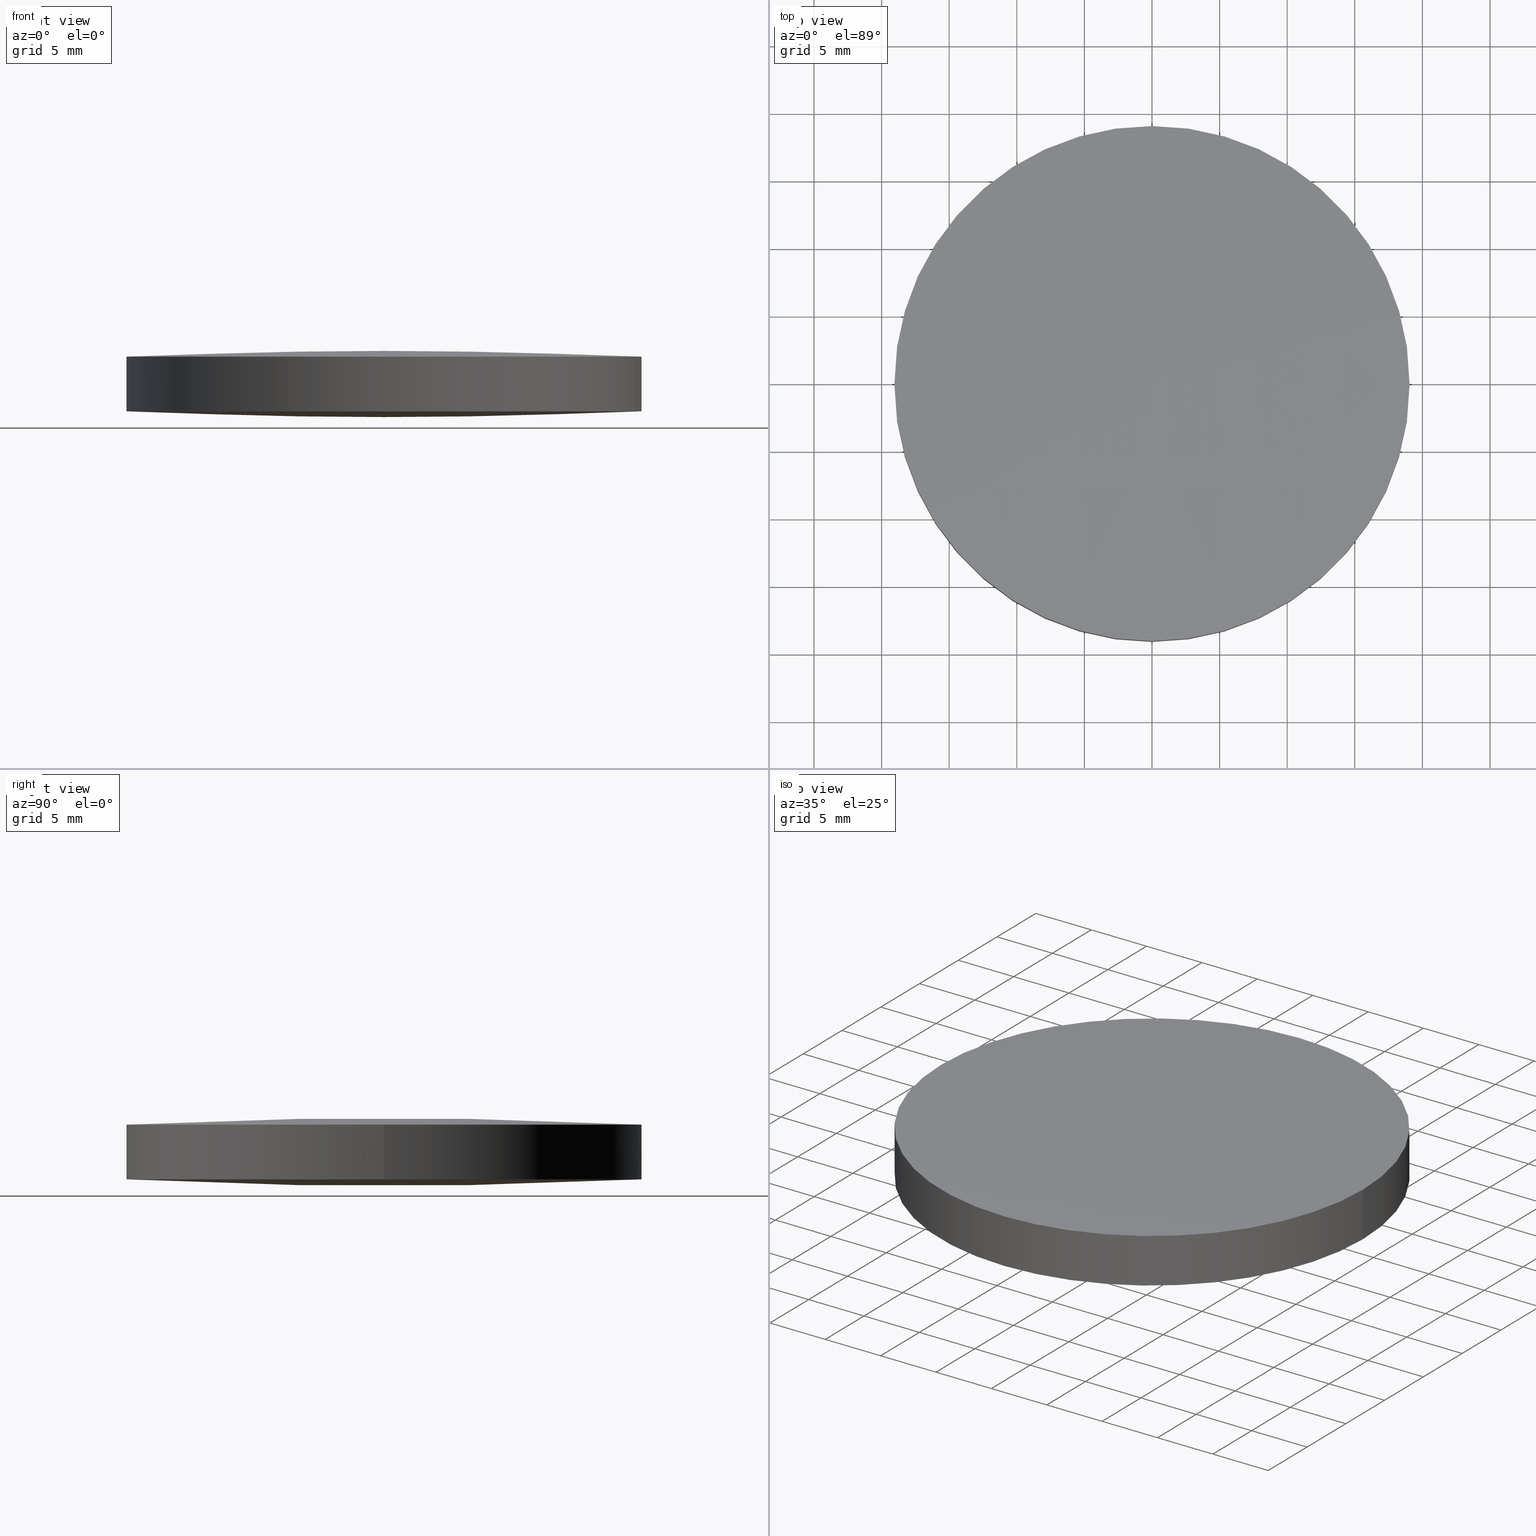
[diagram: canonical four-view strip — front | top / right | iso, engineering-drawing reading convention]
A machine part, canonical four-view strip (front | top / right | iso — engineering-drawing reading convention). The complete STEP part file that produces these views, byte-faithful:
ISO-10303-21;
HEADER;
FILE_DESCRIPTION (( 'STEP AP203' ),
    '1' );
FILE_NAME ('111-1430E UVFS bi-cx 38.1 F400.STEP',
    '2019-01-08T06:52:08',
    ( '' ),
    ( '' ),
    'SwSTEP 2.0',
    'SolidWorks 2017',
    '' );
FILE_SCHEMA (( 'CONFIG_CONTROL_DESIGN' ));
ENDSEC;

DATA;
#1 = DIRECTION ( 'NONE',  ( 0.0000000000000000000, 0.0000000000000000000, 1.000000000000000000 ) ) ;
#2 = CARTESIAN_POINT ( 'NONE',  ( -19.13952497321511400, 19.27840483950793200, 4.027732086510656700 ) ) ;
#3 = AXIS2_PLACEMENT_3D ( 'NONE', #208, #136, #138 ) ;
#4 = EDGE_LOOP ( 'NONE', ( #89, #43, #111, #147, #232, #107 ) ) ;
#5 = APPROVAL_ROLE ( '' ) ;
#6 = LINE ( 'NONE', #42, #237 ) ;
#7 = EDGE_CURVE ( 'NONE', #40, #194, #99, .T. ) ;
#8 = AXIS2_PLACEMENT_3D ( 'NONE', #82, #123, #282 ) ;
#9 = VERTEX_POINT ( 'NONE', #79 ) ;
#10 = COORDINATED_UNIVERSAL_TIME_OFFSET ( 2, 0, .AHEAD. ) ;
#11 = CARTESIAN_POINT ( 'NONE',  ( -12.78637059462209000, 6.431656436612464700, -0.001964688007500333300 ) ) ;
#12 = CARTESIAN_POINT ( 'NONE',  ( -6.383226228310434200, -19.27840483950791800, 0.4893372949265619700 ) ) ;
#13 = CARTESIAN_POINT ( 'NONE',  ( 12.76442145578985400, -19.27840483950794900, 4.349651678797221700 ) ) ;
#14 = CALENDAR_DATE ( 2019, 8, 1 ) ;
#15 = CARTESIAN_POINT ( 'NONE',  ( -6.394202543936491300, -6.431656436612434500, -0.1632525817768162600 ) ) ;
#16 = CARTESIAN_POINT ( 'NONE',  ( 6.394202543936498500, 6.431656436612435400, 5.163252581776818700 ) ) ;
#17 = DIRECTION ( 'NONE',  ( 1.000000000000000000, 8.881784197001252300E-016, 0.0000000000000000000 ) ) ;
#18 = ORIENTED_EDGE ( 'NONE', *, *, #195, .T. ) ;
#19 = APPROVAL_PERSON_ORGANIZATION ( #86, #262, #5 ) ;
#20 = CARTESIAN_POINT ( 'NONE',  ( 19.04999999999999700, -8.881784197001250400E-016, 0.4778036794158739800 ) ) ;
#21 = ADVANCED_FACE ( 'NONE', ( #281 ), #126, .T. ) ;
#22 = CARTESIAN_POINT ( 'NONE',  ( -19.13952497321512800, -19.27840483950794200, 4.027732086510656700 ) ) ;
#23 = CALENDAR_DATE ( 2019, 8, 1 ) ;
#24 = APPLICATION_PROTOCOL_DEFINITION ( 'international standard', 'config_control_design', 1994, #183 ) ;
#25 = CARTESIAN_POINT ( 'NONE',  ( 4.348604400664740100E-014, -6.431656436612463800, 5.163252581776822200 ) ) ;
#26 =( BOUNDED_SURFACE ( )  B_SPLINE_SURFACE ( 3, 3, ( 
 ( #103, #154, #217, #41 ),
 ( #83, #239, #266, #288 ),
 ( #153, #106, #201, #59 ),
 ( #218, #85, #240, #104 ) ),
 .UNSPECIFIED., .F., .F., .F. ) 
 B_SPLINE_SURFACE_WITH_KNOTS ( ( 4, 4 ),
 ( 4, 4 ),
 ( 0.0000000000000000000, 1.000000000000000000 ),
 ( 0.0000000000000000000, 1.000000000000000000 ),
 .UNSPECIFIED. ) 
 GEOMETRIC_REPRESENTATION_ITEM ( )  RATIONAL_B_SPLINE_SURFACE ( (
 ( 1.000000000000000000, 0.9997878814716106800, 0.9997878814716106800, 1.000000000000000000),
 ( 0.9991415135176726600, 0.9989295770901726000, 0.9989295770901726000, 0.9991415135176726600),
 ( 0.9991415135176726600, 0.9989295770901726000, 0.9989295770901726000, 0.9991415135176726600),
 ( 1.000000000000000000, 0.9997878814716106800, 0.9997878814716106800, 1.000000000000000000) ) ) 
 REPRESENTATION_ITEM ( '' )  SURFACE ( )  );
#27 = CARTESIAN_POINT ( 'NONE',  ( 5.132099445097372400E-014, 19.27840483950792500, 4.510662705073443100 ) ) ;
#28 = APPROVAL_DATE_TIME ( #165, #139 ) ;
#29 = CARTESIAN_POINT ( 'NONE',  ( -19.17243646021631800, 6.431656436612445100, 4.679491536920929600 ) ) ;
#30 = CIRCLE ( 'NONE', #54, 19.05000000000000100 ) ;
#31 = ADVANCED_FACE ( 'NONE', ( #118 ), #193, .T. ) ;
#32 = CC_DESIGN_PERSON_AND_ORGANIZATION_ASSIGNMENT ( #69, #256, ( #105 ) ) ;
#33 = ORIENTED_EDGE ( 'NONE', *, *, #200, .F. ) ;
#34 = PERSON_AND_ORGANIZATION ( #77, #144 ) ;
#35 = EDGE_CURVE ( 'NONE', #9, #209, #161, .T. ) ;
#36 = CARTESIAN_POINT ( 'NONE',  ( -6.383226228310448400, 19.27840483950794900, 0.4893372949265620800 ) ) ;
#37 = EDGE_CURVE ( 'NONE', #213, #40, #30, .T. ) ;
#38 = ORIENTED_EDGE ( 'NONE', *, *, #149, .F. ) ;
#39 = CARTESIAN_POINT ( 'NONE',  ( 1.353084311261909500E-013, -6.431656436612464700, 5.163252581776824000 ) ) ;
#40 = VERTEX_POINT ( 'NONE', #88 ) ;
#41 = CARTESIAN_POINT ( 'NONE',  ( 19.13952497321512800, -19.27840483950791000, 0.9722679134893471600 ) ) ;
#42 = CARTESIAN_POINT ( 'NONE',  ( -19.05000000000000400, 1.444773732675583000E-015, 0.4778036794158739800 ) ) ;
#43 = ORIENTED_EDGE ( 'NONE', *, *, #149, .T. ) ;
#44 = APPROVAL_DATE_TIME ( #228, #220 ) ;
#45 = MECHANICAL_CONTEXT ( 'NONE', #183, 'mechanical' ) ;
#46 = EDGE_CURVE ( 'NONE', #213, #211, #260, .T. ) ;
#47 = CARTESIAN_POINT ( 'NONE',  ( -12.76442145578966600, -19.27840483950794200, 4.349651678797236800 ) ) ;
#48 = CARTESIAN_POINT ( 'NONE',  ( -6.383226228310255700, -19.27840483950794200, 4.510662705073442200 ) ) ;
#49 = CARTESIAN_POINT ( 'NONE',  ( -6.383226228310244100, 19.27840483950792500, 4.510662705073442200 ) ) ;
#50 =( LENGTH_UNIT ( ) NAMED_UNIT ( * ) SI_UNIT ( .MILLI., .METRE. ) );
#51 = APPROVAL_STATUS ( 'not_yet_approved' ) ;
#52 = PERSON_AND_ORGANIZATION_ROLE ( 'design_supplier' ) ;
#53 = EDGE_LOOP ( 'NONE', ( #278, #166, #33 ) ) ;
#54 = AXIS2_PLACEMENT_3D ( 'NONE', #156, #130, #64 ) ;
#55 = CARTESIAN_POINT ( 'NONE',  ( 19.13952497321534100, 19.27840483950791800, 4.027732086510638100 ) ) ;
#56 = CARTESIAN_POINT ( 'NONE',  ( -19.17243646021652700, 6.431656436612463800, 0.3205084630790941400 ) ) ;
#57 = AXIS2_PLACEMENT_3D ( 'NONE', #202, #219, #62 ) ;
#58 = CARTESIAN_POINT ( 'NONE',  ( -1.283695372222837200E-013, -19.27840483950791800, 0.4893372949265601400 ) ) ;
#59 = CARTESIAN_POINT ( 'NONE',  ( 19.17243646021631800, 6.431656436612476200, 0.3205084630790748800 ) ) ;
#60 = FACE_OUTER_BOUND ( 'NONE', #234, .T. ) ;
#61 = LOCAL_TIME ( 8, 52, 8.000000000000000000, #10 ) ;
#62 = DIRECTION ( 'NONE',  ( 1.000000000000000000, 0.0000000000000000000, 0.0000000000000000000 ) ) ;
#63 = EDGE_CURVE ( 'NONE', #152, #194, #93, .T. ) ;
#64 = DIRECTION ( 'NONE',  ( 1.000000000000000000, 0.0000000000000000000, 0.0000000000000000000 ) ) ;
#65 = CIRCLE ( 'NONE', #57, 19.05000000000000100 ) ;
#66 = CARTESIAN_POINT ( 'NONE',  ( -19.05000000000000400, 1.444773732675583000E-015, 0.4778036794158739800 ) ) ;
#67 = AXIS2_PLACEMENT_3D ( 'NONE', #271, #292, #203 ) ;
#68 = VERTEX_POINT ( 'NONE', #243 ) ;
#69 = PERSON_AND_ORGANIZATION ( #77, #144 ) ;
#70 = APPLICATION_PROTOCOL_DEFINITION ( 'international standard', 'config_control_design', 1994, #140 ) ;
#71 = CC_DESIGN_APPROVAL ( #139, ( #277 ) ) ;
#72 = CIRCLE ( 'NONE', #98, 19.05000000000000100 ) ;
#73 = PERSON_AND_ORGANIZATION ( #77, #144 ) ;
#74 = EDGE_CURVE ( 'NONE', #9, #68, #97, .T. ) ;
#75 = EDGE_LOOP ( 'NONE', ( #38, #270, #143, #224, #286, #128 ) ) ;
#76 = APPROVAL_DATE_TIME ( #137, #262 ) ;
#77 = PERSON ( 'UNSPECIFIED', 'UNSPECIFIED', 'UNSPECIFIED', ('UNSPECIFIED'), ('UNSPECIFIED'), ('UNSPECIFIED') ) ;
#78 = CIRCLE ( 'NONE', #145, 19.05000000000000100 ) ;
#79 = CARTESIAN_POINT ( 'NONE',  ( 3.959762838265699500E-014, -19.04999999999978000, 4.522196320584167300 ) ) ;
#80 = CC_DESIGN_DATE_AND_TIME_ASSIGNMENT ( #291, #226, ( #105 ) ) ;
#81 = ADVANCED_FACE ( 'NONE', ( #254 ), #192, .T. ) ;
#82 = CARTESIAN_POINT ( 'NONE',  ( -2.842170943040400100E-014, 2.842170943040400100E-014, 380.0000000000000000 ) ) ;
#83 = CARTESIAN_POINT ( 'NONE',  ( -4.348604400664740800E-014, -6.431656436612431800, -0.1632525817768165100 ) ) ;
#84 = ORIENTED_EDGE ( 'NONE', *, *, #7, .T. ) ;
#85 = CARTESIAN_POINT ( 'NONE',  ( 6.383226228310244100, 19.27840483950795700, 0.4893372949265615300 ) ) ;
#86 = PERSON_AND_ORGANIZATION ( #77, #144 ) ;
#87 = AXIS2_PLACEMENT_3D ( 'NONE', #109, #131, #293 ) ;
#88 = CARTESIAN_POINT ( 'NONE',  ( -3.959762838265698800E-014, -19.04999999999978000, 0.4778036794158371200 ) ) ;
#89 = ORIENTED_EDGE ( 'NONE', *, *, #63, .F. ) ;
#90 = DATE_AND_TIME ( #95, #157 ) ;
#91 = CARTESIAN_POINT ( 'NONE',  ( -5.125164675251374400E-014, 19.04999999999980500, 0.4778036794158371200 ) ) ;
#92 = CARTESIAN_POINT ( 'NONE',  ( -4.662936703425659800E-015, -8.881784197001250400E-016, 4.522196320584130000 ) ) ;
#93 = CIRCLE ( 'NONE', #210, 19.05000000000000100 ) ;
#94 = CC_DESIGN_APPROVAL ( #262, ( #105 ) ) ;
#95 = CALENDAR_DATE ( 2019, 8, 1 ) ;
#96 = SECURITY_CLASSIFICATION_LEVEL ( 'unclassified' ) ;
#97 = CIRCLE ( 'NONE', #87, 19.05000000000000100 ) ;
#98 = AXIS2_PLACEMENT_3D ( 'NONE', #134, #112, #246 ) ;
#99 = CIRCLE ( 'NONE', #8, 380.0000000000000000 ) ;
#100 = CALENDAR_DATE ( 2019, 8, 1 ) ;
#101 = CARTESIAN_POINT ( 'NONE',  ( 1.283695372222837200E-013, -19.27840483950794900, 4.510662705073443100 ) ) ;
#102 = ORIENTED_EDGE ( 'NONE', *, *, #294, .F. ) ;
#103 = CARTESIAN_POINT ( 'NONE',  ( -3.952724725196252700E-014, -19.27840483950791800, 0.4893372949265617500 ) ) ;
#104 = CARTESIAN_POINT ( 'NONE',  ( 19.13952497321511400, 19.27840483950796400, 0.9722679134893471600 ) ) ;
#105 = PRODUCT_DEFINITION ( 'UNKNOWN', '', #115, #176 ) ;
#106 = CARTESIAN_POINT ( 'NONE',  ( 6.394202543936295900, 6.431656436612470900, -0.1632525817768162300 ) ) ;
#107 = ORIENTED_EDGE ( 'NONE', *, *, #195, .F. ) ;
#108 = DIRECTION ( 'NONE',  ( 0.0000000000000000000, 0.0000000000000000000, 1.000000000000000000 ) ) ;
#109 = CARTESIAN_POINT ( 'NONE',  ( -4.662936703425659800E-015, -8.881784197001250400E-016, 4.522196320584130000 ) ) ;
#110 = ADVANCED_FACE ( 'NONE', ( #60 ), #26, .T. ) ;
#111 = ORIENTED_EDGE ( 'NONE', *, *, #200, .T. ) ;
#112 = DIRECTION ( 'NONE',  ( -0.0000000000000000000, -0.0000000000000000000, -1.000000000000000000 ) ) ;
#113 = CARTESIAN_POINT ( 'NONE',  ( 4.742067089698283200E-014, 6.431656436612438900, 5.163252581776819600 ) ) ;
#114 = AXIS2_PLACEMENT_3D ( 'NONE', #158, #268, #175 ) ;
#115 = PRODUCT_DEFINITION_FORMATION_WITH_SPECIFIED_SOURCE ( 'ANY', '', #284, .NOT_KNOWN. ) ;
#116 = PERSON_AND_ORGANIZATION_ROLE ( 'design_owner' ) ;
#117 = AXIS2_PLACEMENT_3D ( 'NONE', #225, #295, #159 ) ;
#118 = FACE_OUTER_BOUND ( 'NONE', #169, .T. ) ;
#119 = CC_DESIGN_APPROVAL ( #220, ( #115 ) ) ;
#120 = PERSON_AND_ORGANIZATION ( #77, #144 ) ;
#121 = CARTESIAN_POINT ( 'NONE',  ( -12.76442145578985400, -19.27840483950791800, 0.6503483212027836300 ) ) ;
#122 = EDGE_CURVE ( 'NONE', #40, #152, #65, .T. ) ;
#123 = DIRECTION ( 'NONE',  ( 1.000000000000000000, 3.058797472403380000E-016, -4.480087937417740100E-017 ) ) ;
#124 = CIRCLE ( 'NONE', #269, 19.05000000000000100 ) ;
#125 = CARTESIAN_POINT ( 'NONE',  ( -1.422473250300981800E-013, 6.431656436612469100, -0.1632525817768177000 ) ) ;
#126 =( BOUNDED_SURFACE ( )  B_SPLINE_SURFACE ( 3, 3, ( 
 ( #261, #121, #12, #58 ),
 ( #146, #150, #15, #238 ),
 ( #56, #11, #173, #125 ),
 ( #215, #212, #36, #263 ) ),
 .UNSPECIFIED., .F., .F., .F. ) 
 B_SPLINE_SURFACE_WITH_KNOTS ( ( 4, 4 ),
 ( 4, 4 ),
 ( 0.0000000000000000000, 1.000000000000000000 ),
 ( 0.0000000000000000000, 1.000000000000000000 ),
 .UNSPECIFIED. ) 
 GEOMETRIC_REPRESENTATION_ITEM ( )  RATIONAL_B_SPLINE_SURFACE ( (
 ( 1.000000000000000000, 0.9997878814716106800, 0.9997878814716106800, 1.000000000000000000),
 ( 0.9991415135176726600, 0.9989295770901726000, 0.9989295770901726000, 0.9991415135176726600),
 ( 0.9991415135176726600, 0.9989295770901726000, 0.9989295770901726000, 0.9991415135176726600),
 ( 1.000000000000000000, 0.9997878814716106800, 0.9997878814716106800, 1.000000000000000000) ) ) 
 REPRESENTATION_ITEM ( '' )  SURFACE ( )  );
#127 = DIRECTION ( 'NONE',  ( -0.0000000000000000000, -0.0000000000000000000, -1.000000000000000000 ) ) ;
#128 = ORIENTED_EDGE ( 'NONE', *, *, #74, .T. ) ;
#129 = LOCAL_TIME ( 8, 52, 8.000000000000000000, #148 ) ;
#130 = DIRECTION ( 'NONE',  ( -0.0000000000000000000, -0.0000000000000000000, -1.000000000000000000 ) ) ;
#131 = DIRECTION ( 'NONE',  ( -0.0000000000000000000, -0.0000000000000000000, -1.000000000000000000 ) ) ;
#132 = LOCAL_TIME ( 8, 52, 8.000000000000000000, #142 ) ;
#133 = DIRECTION ( 'NONE',  ( -0.0000000000000000000, -0.0000000000000000000, -1.000000000000000000 ) ) ;
#134 = CARTESIAN_POINT ( 'NONE',  ( -4.662936703425659800E-015, -8.881784197001250400E-016, 0.4778036794158739800 ) ) ;
#135 = CARTESIAN_POINT ( 'NONE',  ( -6.394202543936295900, 6.431656436612439800, 5.163252581776818700 ) ) ;
#136 = DIRECTION ( 'NONE',  ( 0.0000000000000000000, 0.0000000000000000000, 1.000000000000000000 ) ) ;
#137 = DATE_AND_TIME ( #23, #129 ) ;
#138 = DIRECTION ( 'NONE',  ( 1.000000000000000000, 0.0000000000000000000, 0.0000000000000000000 ) ) ;
#139 = APPROVAL ( #51, 'UNSPECIFIED' ) ;
#140 = APPLICATION_CONTEXT ( 'configuration controlled 3d designs of mechanical parts and assemblies' ) ;
#141 = FACE_OUTER_BOUND ( 'NONE', #53, .T. ) ;
#142 = COORDINATED_UNIVERSAL_TIME_OFFSET ( 2, 0, .AHEAD. ) ;
#143 = ORIENTED_EDGE ( 'NONE', *, *, #37, .F. ) ;
#144 = ORGANIZATION ( 'UNSPECIFIED', 'UNSPECIFIED', '' ) ;
#145 = AXIS2_PLACEMENT_3D ( 'NONE', #273, #133, #205 ) ;
#146 = CARTESIAN_POINT ( 'NONE',  ( -19.17243646021652000, -6.431656436612438900, 0.3205084630790935900 ) ) ;
#147 = ORIENTED_EDGE ( 'NONE', *, *, #294, .T. ) ;
#148 = COORDINATED_UNIVERSAL_TIME_OFFSET ( 2, 0, .AHEAD. ) ;
#149 = EDGE_CURVE ( 'NONE', #152, #68, #6, .T. ) ;
#150 = CARTESIAN_POINT ( 'NONE',  ( -12.78637059462208300, -6.431656436612436200, -0.001964688007500820300 ) ) ;
#151 = CARTESIAN_POINT ( 'NONE',  ( 12.78637059462209000, 6.431656436612433600, 5.001964688007503500 ) ) ;
#152 = VERTEX_POINT ( 'NONE', #66 ) ;
#153 = CARTESIAN_POINT ( 'NONE',  ( -4.742067089698283200E-014, 6.431656436612470000, -0.1632525817768159500 ) ) ;
#154 = CARTESIAN_POINT ( 'NONE',  ( 6.383226228310255700, -19.27840483950791000, 0.4893372949265615300 ) ) ;
#155 = CC_DESIGN_PERSON_AND_ORGANIZATION_ASSIGNMENT ( #248, #255, ( #115 ) ) ;
#156 = CARTESIAN_POINT ( 'NONE',  ( -4.662936703425659800E-015, -8.881784197001250400E-016, 0.4778036794158739800 ) ) ;
#157 = LOCAL_TIME ( 8, 52, 8.000000000000000000, #171 ) ;
#158 = CARTESIAN_POINT ( 'NONE',  ( -4.662936703425659800E-015, -8.881784197001250400E-016, 0.4778036794158739800 ) ) ;
#159 = DIRECTION ( 'NONE',  ( 1.000000000000000000, 0.0000000000000000000, 0.0000000000000000000 ) ) ;
#160 = CARTESIAN_POINT ( 'NONE',  ( -19.17243646021632100, -6.431656436612457600, 4.679491536920932200 ) ) ;
#161 = CIRCLE ( 'NONE', #67, 380.0000000000000000 ) ;
#162 = CC_DESIGN_PERSON_AND_ORGANIZATION_ASSIGNMENT ( #242, #116, ( #284 ) ) ;
#163 =( NAMED_UNIT ( * ) PLANE_ANGLE_UNIT ( ) SI_UNIT ( $, .RADIAN. ) );
#164 = AXIS2_PLACEMENT_3D ( 'NONE', #186, #1, #222 ) ;
#165 = DATE_AND_TIME ( #14, #132 ) ;
#166 = ORIENTED_EDGE ( 'NONE', *, *, #35, .T. ) ;
#167 = COORDINATED_UNIVERSAL_TIME_OFFSET ( 2, 0, .AHEAD. ) ;
#168 = APPROVAL_STATUS ( 'not_yet_approved' ) ;
#169 = EDGE_LOOP ( 'NONE', ( #170, #283, #102 ) ) ;
#170 = ORIENTED_EDGE ( 'NONE', *, *, #35, .F. ) ;
#171 = COORDINATED_UNIVERSAL_TIME_OFFSET ( 2, 0, .AHEAD. ) ;
#172 = CARTESIAN_POINT ( 'NONE',  ( 12.78637059462208300, -6.431656436612468200, 5.001964688007505300 ) ) ;
#173 = CARTESIAN_POINT ( 'NONE',  ( -6.394202543936498500, 6.431656436612467300, -0.1632525817768158100 ) ) ;
#174 = CLOSED_SHELL ( 'NONE', ( #110, #244, #81, #21, #181, #31 ) ) ;
#175 = DIRECTION ( 'NONE',  ( 1.000000000000000000, 0.0000000000000000000, 0.0000000000000000000 ) ) ;
#176 = DESIGN_CONTEXT ( 'detailed design', #140, 'design' ) ;
#177 = CC_DESIGN_PERSON_AND_ORGANIZATION_ASSIGNMENT ( #279, #231, ( #277 ) ) ;
#178 = DIRECTION ( 'NONE',  ( 0.0000000000000000000, 0.0000000000000000000, 1.000000000000000000 ) ) ;
#179 =( GEOMETRIC_REPRESENTATION_CONTEXT ( 3 ) GLOBAL_UNCERTAINTY_ASSIGNED_CONTEXT ( ( #259 ) ) GLOBAL_UNIT_ASSIGNED_CONTEXT ( ( #50, #163, #250 ) ) REPRESENTATION_CONTEXT ( 'NONE', 'WORKASPACE' ) );
#180 = EDGE_LOOP ( 'NONE', ( #264, #290, #267 ) ) ;
#181 = ADVANCED_FACE ( 'NONE', ( #199 ), #247, .T. ) ;
#182 = CARTESIAN_POINT ( 'NONE',  ( 6.383226228310448400, 19.27840483950791800, 4.510662705073441400 ) ) ;
#183 = APPLICATION_CONTEXT ( 'configuration controlled 3d designs of mechanical parts and assemblies' ) ;
#184 = CARTESIAN_POINT ( 'NONE',  ( 3.952724725196252000E-014, -19.27840483950794900, 4.510662705073443100 ) ) ;
#185 = MANIFOLD_SOLID_BREP ( 'Imported1', #174 ) ;
#186 = CARTESIAN_POINT ( 'NONE',  ( -4.662936703425659800E-015, -8.881784197001250400E-016, 0.4778036794158739800 ) ) ;
#187 = VECTOR ( 'NONE', #178, 1000.000000000000000 ) ;
#188 = LOCAL_TIME ( 8, 52, 8.000000000000000000, #167 ) ;
#189 = PRODUCT_RELATED_PRODUCT_CATEGORY ( 'detail', '', ( #284 ) ) ;
#190 = DATE_TIME_ROLE ( 'classification_date' ) ;
#191 = APPROVAL_ROLE ( '' ) ;
#192 = CYLINDRICAL_SURFACE ( 'NONE', #114, 19.05000000000000100 ) ;
#193 =( BOUNDED_SURFACE ( )  B_SPLINE_SURFACE ( 3, 3, ( 
 ( #216, #13, #236, #101 ),
 ( #287, #172, #265, #39 ),
 ( #197, #151, #16, #196 ),
 ( #55, #289, #182, #245 ) ),
 .UNSPECIFIED., .F., .F., .F. ) 
 B_SPLINE_SURFACE_WITH_KNOTS ( ( 4, 4 ),
 ( 4, 4 ),
 ( 0.0000000000000000000, 1.000000000000000000 ),
 ( 0.0000000000000000000, 1.000000000000000000 ),
 .UNSPECIFIED. ) 
 GEOMETRIC_REPRESENTATION_ITEM ( )  RATIONAL_B_SPLINE_SURFACE ( (
 ( 1.000000000000000000, 0.9997878814716106800, 0.9997878814716106800, 1.000000000000000000),
 ( 0.9991415135176726600, 0.9989295770901726000, 0.9989295770901726000, 0.9991415135176726600),
 ( 0.9991415135176726600, 0.9989295770901726000, 0.9989295770901726000, 0.9991415135176726600),
 ( 1.000000000000000000, 0.9997878814716106800, 0.9997878814716106800, 1.000000000000000000) ) ) 
 REPRESENTATION_ITEM ( '' )  SURFACE ( )  );
#194 = VERTEX_POINT ( 'NONE', #91 ) ;
#195 = EDGE_CURVE ( 'NONE', #194, #213, #72, .T. ) ;
#196 = CARTESIAN_POINT ( 'NONE',  ( 1.422473250300981800E-013, 6.431656436612438000, 5.163252581776821300 ) ) ;
#197 = CARTESIAN_POINT ( 'NONE',  ( 19.17243646021652700, 6.431656436612431800, 4.679491536920910000 ) ) ;
#198 = CC_DESIGN_SECURITY_CLASSIFICATION ( #277, ( #115 ) ) ;
#199 = FACE_OUTER_BOUND ( 'NONE', #75, .T. ) ;
#200 = EDGE_CURVE ( 'NONE', #68, #209, #78, .T. ) ;
#201 = CARTESIAN_POINT ( 'NONE',  ( 12.78637059462188200, 6.431656436612473500, -0.001964688007516379500 ) ) ;
#202 = CARTESIAN_POINT ( 'NONE',  ( -4.662936703425659800E-015, -8.881784197001250400E-016, 0.4778036794158739800 ) ) ;
#203 = DIRECTION ( 'NONE',  ( -3.058797472403380500E-016, -1.000000000000000000, 2.921639538487254300E-016 ) ) ;
#204 = CIRCLE ( 'NONE', #117, 19.05000000000000100 ) ;
#205 = DIRECTION ( 'NONE',  ( 1.000000000000000000, 0.0000000000000000000, 0.0000000000000000000 ) ) ;
#206 = APPROVAL_PERSON_ORGANIZATION ( #34, #139, #280 ) ;
#207 = CARTESIAN_POINT ( 'NONE',  ( -12.78637059462188200, 6.431656436612442500, 5.001964688007518600 ) ) ;
#208 = CARTESIAN_POINT ( 'NONE',  ( 0.0000000000000000000, 0.0000000000000000000, 0.0000000000000000000 ) ) ;
#209 = VERTEX_POINT ( 'NONE', #249 ) ;
#210 = AXIS2_PLACEMENT_3D ( 'NONE', #241, #127, #17 ) ;
#211 = VERTEX_POINT ( 'NONE', #253 ) ;
#212 = CARTESIAN_POINT ( 'NONE',  ( -12.76442145578986900, 19.27840483950794900, 0.6503483212027836300 ) ) ;
#213 = VERTEX_POINT ( 'NONE', #223 ) ;
#214 = EDGE_CURVE ( 'NONE', #211, #9, #204, .T. ) ;
#215 = CARTESIAN_POINT ( 'NONE',  ( -19.13952497321534100, 19.27840483950794900, 0.9722679134893663600 ) ) ;
#216 = CARTESIAN_POINT ( 'NONE',  ( 19.13952497321532700, -19.27840483950795700, 4.027732086510638100 ) ) ;
#217 = CARTESIAN_POINT ( 'NONE',  ( 12.76442145578966600, -19.27840483950791000, 0.6503483212027676400 ) ) ;
#218 = CARTESIAN_POINT ( 'NONE',  ( -5.132099445097372400E-014, 19.27840483950795700, 0.4893372949265617500 ) ) ;
#219 = DIRECTION ( 'NONE',  ( -0.0000000000000000000, -0.0000000000000000000, -1.000000000000000000 ) ) ;
#220 = APPROVAL ( #229, 'UNSPECIFIED' ) ;
#221 = CARTESIAN_POINT ( 'NONE',  ( -12.78637059462188600, -6.431656436612458400, 5.001964688007521300 ) ) ;
#222 = DIRECTION ( 'NONE',  ( 1.000000000000000000, 0.0000000000000000000, 0.0000000000000000000 ) ) ;
#223 = CARTESIAN_POINT ( 'NONE',  ( 19.04999999999999700, -8.881784197001250400E-016, 0.4778036794158739800 ) ) ;
#224 = ORIENTED_EDGE ( 'NONE', *, *, #46, .T. ) ;
#225 = CARTESIAN_POINT ( 'NONE',  ( -4.662936703425659800E-015, -8.881784197001250400E-016, 4.522196320584130000 ) ) ;
#226 = DATE_TIME_ROLE ( 'creation_date' ) ;
#227 = ORIENTED_EDGE ( 'NONE', *, *, #37, .T. ) ;
#228 = DATE_AND_TIME ( #235, #61 ) ;
#229 = APPROVAL_STATUS ( 'not_yet_approved' ) ;
#230 = SHAPE_DEFINITION_REPRESENTATION ( #258, #285 ) ;
#231 = PERSON_AND_ORGANIZATION_ROLE ( 'classification_officer' ) ;
#232 = ORIENTED_EDGE ( 'NONE', *, *, #46, .F. ) ;
#233 =( BOUNDED_SURFACE ( )  B_SPLINE_SURFACE ( 3, 3, ( 
 ( #184, #48, #47, #22 ),
 ( #25, #274, #221, #160 ),
 ( #113, #135, #207, #29 ),
 ( #27, #49, #276, #2 ) ),
 .UNSPECIFIED., .F., .F., .F. ) 
 B_SPLINE_SURFACE_WITH_KNOTS ( ( 4, 4 ),
 ( 4, 4 ),
 ( 0.0000000000000000000, 1.000000000000000000 ),
 ( 0.0000000000000000000, 1.000000000000000000 ),
 .UNSPECIFIED. ) 
 GEOMETRIC_REPRESENTATION_ITEM ( )  RATIONAL_B_SPLINE_SURFACE ( (
 ( 1.000000000000000000, 0.9997878814716106800, 0.9997878814716106800, 1.000000000000000000),
 ( 0.9991415135176726600, 0.9989295770901726000, 0.9989295770901726000, 0.9991415135176726600),
 ( 0.9991415135176726600, 0.9989295770901726000, 0.9989295770901726000, 0.9991415135176726600),
 ( 1.000000000000000000, 0.9997878814716106800, 0.9997878814716106800, 1.000000000000000000) ) ) 
 REPRESENTATION_ITEM ( '' )  SURFACE ( )  );
#234 = EDGE_LOOP ( 'NONE', ( #227, #84, #18 ) ) ;
#235 = CALENDAR_DATE ( 2019, 8, 1 ) ;
#236 = CARTESIAN_POINT ( 'NONE',  ( 6.383226228310434200, -19.27840483950794900, 4.510662705073441400 ) ) ;
#237 = VECTOR ( 'NONE', #108, 1000.000000000000000 ) ;
#238 = CARTESIAN_POINT ( 'NONE',  ( -1.353084311261909500E-013, -6.431656436612432700, -0.1632525817768181500 ) ) ;
#239 = CARTESIAN_POINT ( 'NONE',  ( 6.394202543936300400, -6.431656436612430000, -0.1632525817768167900 ) ) ;
#240 = CARTESIAN_POINT ( 'NONE',  ( 12.76442145578965200, 19.27840483950795700, 0.6503483212027676400 ) ) ;
#241 = CARTESIAN_POINT ( 'NONE',  ( -4.662936703425659800E-015, -8.881784197001250400E-016, 0.4778036794158739800 ) ) ;
#242 = PERSON_AND_ORGANIZATION ( #77, #144 ) ;
#243 = CARTESIAN_POINT ( 'NONE',  ( -19.05000000000000400, 1.444773732675583000E-015, 4.522196320584130000 ) ) ;
#244 = ADVANCED_FACE ( 'NONE', ( #141 ), #233, .T. ) ;
#245 = CARTESIAN_POINT ( 'NONE',  ( 1.422473250300981800E-013, 19.27840483950792500, 4.510662705073443100 ) ) ;
#246 = DIRECTION ( 'NONE',  ( 1.000000000000000000, -8.881784197001252300E-016, 0.0000000000000000000 ) ) ;
#247 = CYLINDRICAL_SURFACE ( 'NONE', #164, 19.05000000000000100 ) ;
#248 = PERSON_AND_ORGANIZATION ( #77, #144 ) ;
#249 = CARTESIAN_POINT ( 'NONE',  ( 5.125164675251374400E-014, 19.04999999999980500, 4.522196320584167300 ) ) ;
#250 =( NAMED_UNIT ( * ) SI_UNIT ( $, .STERADIAN. ) SOLID_ANGLE_UNIT ( ) );
#251 = DIRECTION ( 'NONE',  ( -0.0000000000000000000, -0.0000000000000000000, -1.000000000000000000 ) ) ;
#252 = CC_DESIGN_DATE_AND_TIME_ASSIGNMENT ( #90, #190, ( #277 ) ) ;
#253 = CARTESIAN_POINT ( 'NONE',  ( 19.04999999999999700, -8.881784197001250400E-016, 4.522196320584130000 ) ) ;
#254 = FACE_OUTER_BOUND ( 'NONE', #4, .T. ) ;
#255 = PERSON_AND_ORGANIZATION_ROLE ( 'creator' ) ;
#256 = PERSON_AND_ORGANIZATION_ROLE ( 'creator' ) ;
#257 = APPROVAL_PERSON_ORGANIZATION ( #120, #220, #191 ) ;
#258 = PRODUCT_DEFINITION_SHAPE ( 'NONE', 'NONE',  #105 ) ;
#259 = UNCERTAINTY_MEASURE_WITH_UNIT (LENGTH_MEASURE( 1.000000000000000100E-005 ), #50, 'distance_accuracy_value', 'NONE');
#260 = LINE ( 'NONE', #20, #187 ) ;
#261 = CARTESIAN_POINT ( 'NONE',  ( -19.13952497321532700, -19.27840483950792500, 0.9722679134893663600 ) ) ;
#262 = APPROVAL ( #168, 'UNSPECIFIED' ) ;
#263 = CARTESIAN_POINT ( 'NONE',  ( -1.422473250300981800E-013, 19.27840483950795700, 0.4893372949265601400 ) ) ;
#264 = ORIENTED_EDGE ( 'NONE', *, *, #7, .F. ) ;
#265 = CARTESIAN_POINT ( 'NONE',  ( 6.394202543936491300, -6.431656436612465600, 5.163252581776821300 ) ) ;
#266 = CARTESIAN_POINT ( 'NONE',  ( 12.78637059462188600, -6.431656436612427400, -0.001964688007516921600 ) ) ;
#267 = ORIENTED_EDGE ( 'NONE', *, *, #63, .T. ) ;
#268 = DIRECTION ( 'NONE',  ( 0.0000000000000000000, 0.0000000000000000000, 1.000000000000000000 ) ) ;
#269 = AXIS2_PLACEMENT_3D ( 'NONE', #92, #251, #275 ) ;
#270 = ORIENTED_EDGE ( 'NONE', *, *, #122, .F. ) ;
#271 = CARTESIAN_POINT ( 'NONE',  ( 2.842170943040400100E-014, 2.842170943040400100E-014, -375.0000000000000000 ) ) ;
#272 = CC_DESIGN_PERSON_AND_ORGANIZATION_ASSIGNMENT ( #73, #52, ( #115 ) ) ;
#273 = CARTESIAN_POINT ( 'NONE',  ( -4.662936703425659800E-015, -8.881784197001250400E-016, 4.522196320584130000 ) ) ;
#274 = CARTESIAN_POINT ( 'NONE',  ( -6.394202543936300400, -6.431656436612461100, 5.163252581776821300 ) ) ;
#275 = DIRECTION ( 'NONE',  ( 1.000000000000000000, -8.881784197001252300E-016, 0.0000000000000000000 ) ) ;
#276 = CARTESIAN_POINT ( 'NONE',  ( -12.76442145578965200, 19.27840483950792500, 4.349651678797236800 ) ) ;
#277 = SECURITY_CLASSIFICATION ( '', '', #96 ) ;
#278 = ORIENTED_EDGE ( 'NONE', *, *, #74, .F. ) ;
#279 = PERSON_AND_ORGANIZATION ( #77, #144 ) ;
#280 = APPROVAL_ROLE ( '' ) ;
#281 = FACE_OUTER_BOUND ( 'NONE', #180, .T. ) ;
#282 = DIRECTION ( 'NONE',  ( 3.058797472403380500E-016, -1.000000000000000000, 2.921639538487254300E-016 ) ) ;
#283 = ORIENTED_EDGE ( 'NONE', *, *, #214, .F. ) ;
#284 = PRODUCT ( '111-1430E UVFS bi-cx 38.1 F400', '111-1430E UVFS bi-cx 38.1 F400', '', ( #45 ) ) ;
#285 = ADVANCED_BREP_SHAPE_REPRESENTATION ( '111-1430E UVFS bi-cx 38.1 F400', ( #185, #3 ), #179 ) ;
#286 = ORIENTED_EDGE ( 'NONE', *, *, #214, .T. ) ;
#287 = CARTESIAN_POINT ( 'NONE',  ( 19.17243646021652000, -6.431656436612470000, 4.679491536920912700 ) ) ;
#288 = CARTESIAN_POINT ( 'NONE',  ( 19.17243646021632100, -6.431656436612426500, 0.3205084630790743200 ) ) ;
#289 = CARTESIAN_POINT ( 'NONE',  ( 12.76442145578986900, 19.27840483950791800, 4.349651678797221700 ) ) ;
#290 = ORIENTED_EDGE ( 'NONE', *, *, #122, .T. ) ;
#291 = DATE_AND_TIME ( #100, #188 ) ;
#292 = DIRECTION ( 'NONE',  ( -1.000000000000000000, 3.058797472403380000E-016, 4.480087937417740100E-017 ) ) ;
#293 = DIRECTION ( 'NONE',  ( 1.000000000000000000, 0.0000000000000000000, 0.0000000000000000000 ) ) ;
#294 = EDGE_CURVE ( 'NONE', #209, #211, #124, .T. ) ;
#295 = DIRECTION ( 'NONE',  ( -0.0000000000000000000, -0.0000000000000000000, -1.000000000000000000 ) ) ;
ENDSEC;
END-ISO-10303-21;
